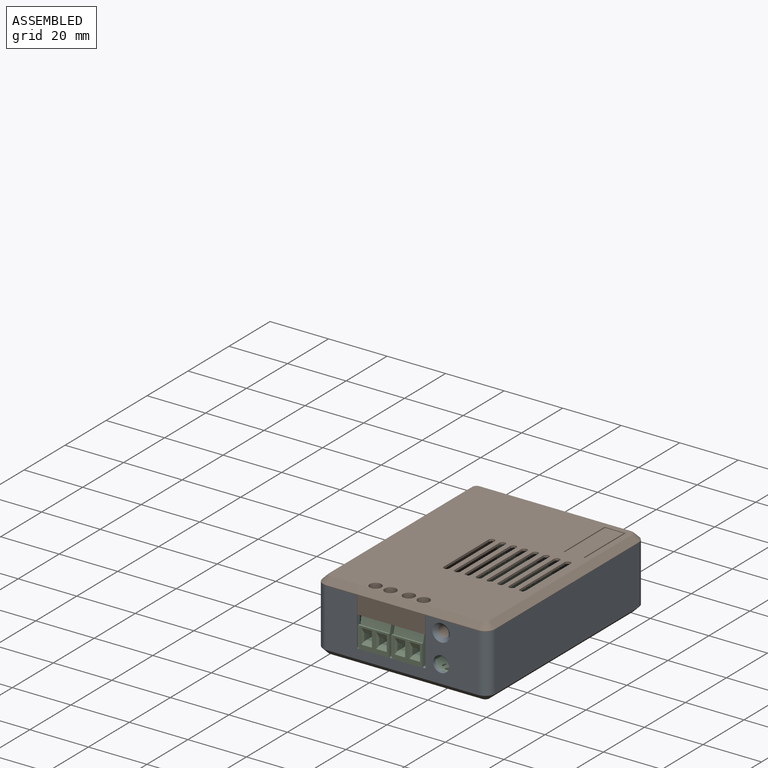
[diagram: assembled view]
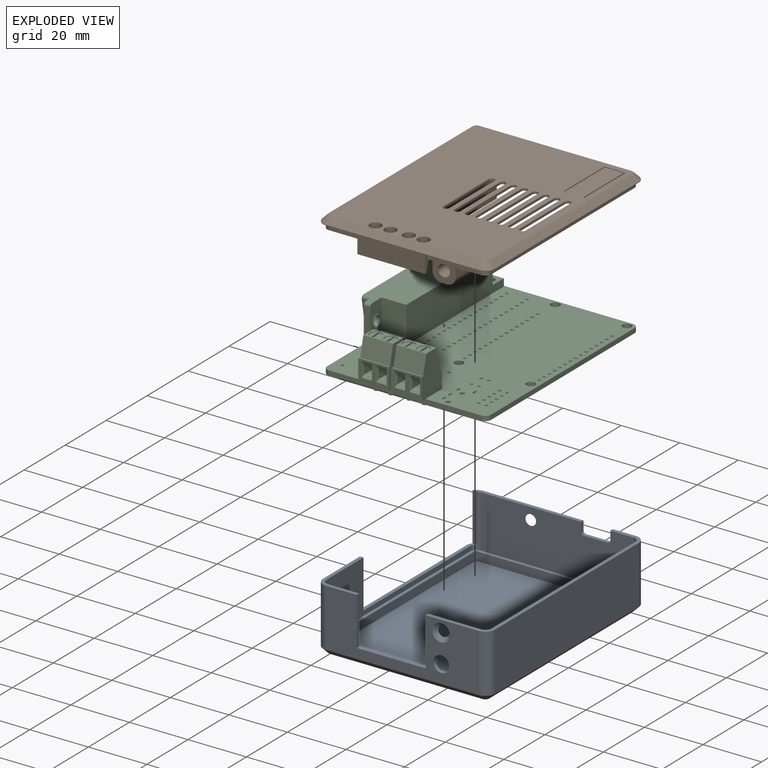
[diagram: exploded view]
GUIDED TOUR — FREECAD ASSEMBLY "CNC3040_Box"

This assembly has 3 components, labeled P0..P2 below (a component is one placed body or linked part; the same part can appear more than once), held together by 0 modeled joints plus 3 derived contact edges. A joint is a constraint between two components; its type names the relative motion it leaves free:
  CONTACT — a derived adjacency edge — the two components touch in the source model (clearance under 2% of the assembly's diagonal); it is measured from the geometry, not a modeled constraint.
Axis/direction vectors are unit vectors and 'through' points are millimeter coordinates, both in the assembly's world frame.

MATES
  1. CONTACT "contact_0_1": P0 <-> P1, contact direction (0.000, 0.000, 1.000) through (74.00, -18.60, 18.00) mm (derived from contact, not a modeled constraint)
  2. CONTACT "contact_0_2": P0 <-> P2, contact direction (-1.000, 0.000, 0.000) through (74.00, -19.90, 0.00) mm (derived from contact, not a modeled constraint)
  3. CONTACT "contact_1_2": P1 <-> P2, contact direction (-0.522, -0.135, -0.842) through (54.48, -91.40, 15.55) mm (derived from contact, not a modeled constraint)

ASSEMBLY ORDER
  1. P0 — the base component [order verified]
  2. P2 [order verified]
  3. P1 [order verified]
(P1 verified with a relaxed clearance tolerance: the source model stores slight part interference there.)
Order-tag legend:
  [order verified] — this step's position reverses a verified removal order: the component was checked to insert without passing through the ones already placed.

Of the 3 components, 2 carry a construction recipe — the FreeCAD feature program (sketches with constraints, then the solid features that consume them) that regenerates the part from scratch, quoted from this document or from the linked companion document it references; the rest are supplied as boundary geometry only. The tour below walks the components in assembly order: each is shown spotlighted twice — in the assembled view, then in the exploded view, where a leader line traces a displaced component back to its assembled socket (components that stay in place when exploded have no leader line; saturated green if recipe-attached, orange if geometry-only; every other component desaturated gray) — followed by its recipe or geometry summary and the mates that hold it.
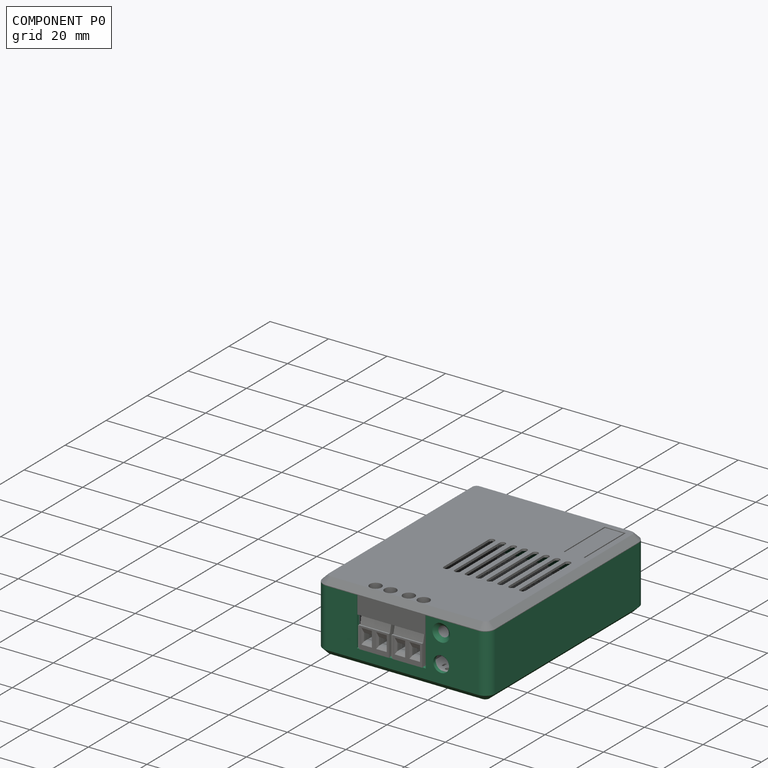
[diagram: component P0 — assembled]
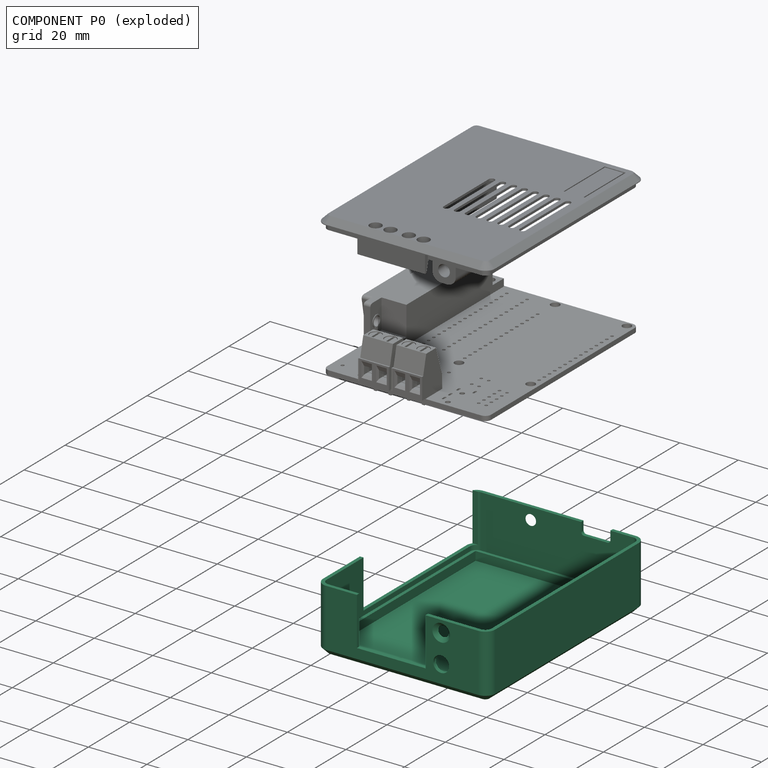
[diagram: component P0 — exploded]
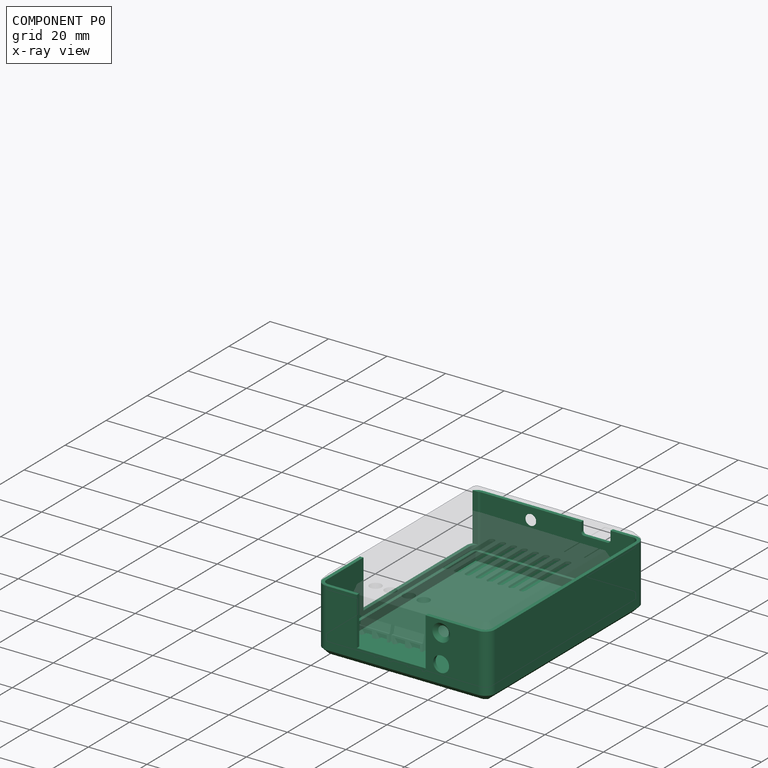
[diagram: component P0 — x-ray view]
COMPONENT P0 — recipe-attached ("Bot", modeled in this document).
Held by: resting contact with P1 (derived edge); resting contact with P2 (derived edge).
Construction recipe (the document's own serialized feature program — sketch geometry with constraints, then the solid features built on it; lengths are millimeters unless a unit is written):

FEATURE [Part::SubShapeBinder] Import  label="Import(GrblHAL_CNC3040 PCB)"
  BindCopyOnChange = 0
  BindMode = 0
  ClaimChildren = false
  Context = -> Body [Import.]
  EdgeTolerance = 1e-06
  FillStyle = 0
  FixShape = 1
  Fuse = false
  InvalidShape = false
  MakeFace = false
  MergeEdges = true
  OffsetFill = false
  OffsetIntersection = false
  OffsetJoinType = 0
  OffsetOpenResult = false
  Outline = false
  PartialLoad = false
  Relative = true
  SplitEdges = false
  Support = -> [Part007[Solid007.]]
  TightBound = false
  TreeRank = 135
  ValidateShape = false
  _Version = 8
FEATURE [PartDesign::Plane] DatumPlane
  AttachmentOffset = pos=(0,0,3) rot=(0,0,1;0rad)
  AttachmentSupport = -> [Import]
  FixShape = 1
  InvalidShape = false
  Length = 76
  MapMode = 5
  MinimumLength = 10
  MinimumWidth = 10
  Placement = pos=(0,0,-3) rot=(1,0,0;3.14159rad)
  ResizeMode = 0
  Support = -> [Import]
  TreeRank = 134
  ValidateShape = false
  Width = 94
FEATURE [Sketcher::SketchObject] Sketch
  ArcFitTolerance = 1e-06
  AttachmentSupport = -> [DatumPlane]
  ExternalBSplineMaxDegree = 5
  ExternalBSplineTolerance = 0.0001
  ExternalGeometry = -> [Import]
  FixShape = 1
  FullyConstrained = true
  InternalTolerance = 1e-06
  InvalidShape = false
  MakeInternals = false
  MapMode = 5
  Placement = pos=(0,0,-3) rot=(1,0,0;3.14159rad)
  Support = -> [DatumPlane]
  TreeRank = 136
  ValidateShape = false
  sketch-geometry (8):
    g0: ArcOfCircle CenterX=74 CenterY=92 CenterZ=0 NormalX=0 NormalY=0 NormalZ=1 AngleXU=0 Radius=3.4 StartAngle=1.1e-15 EndAngle=1.5708
    g1: ArcOfCircle CenterX=22 CenterY=92 CenterZ=0 NormalX=0 NormalY=0 NormalZ=1 AngleXU=0 Radius=3.4 StartAngle=1.5708 EndAngle=3.14159
    g2: ArcOfCircle CenterX=74 CenterY=22 CenterZ=0 NormalX=0 NormalY=0 NormalZ=1 AngleXU=0 Radius=3.4 StartAngle=4.71239 EndAngle=6.28319
    g3: ArcOfCircle CenterX=22 CenterY=22 CenterZ=0 NormalX=0 NormalY=0 NormalZ=1 AngleXU=0 Radius=3.4 StartAngle=3.14159 EndAngle=4.71239
    g4: LineSegment StartX=22 StartY=18.6 StartZ=0 EndX=74 EndY=18.6 EndZ=0
    g5: LineSegment StartX=77.4 StartY=22 StartZ=0 EndX=77.4 EndY=92 EndZ=0
    g6: LineSegment StartX=74 StartY=95.4 StartZ=0 EndX=22 EndY=95.4 EndZ=0
    g7: LineSegment StartX=18.6 StartY=92 StartZ=0 EndX=18.6 EndY=22 EndZ=0
  constraints (28):
    c: Horizontal(g0,g-4)
    c: Horizontal(g-4,g0)
    c: Vertical(g0,g-3)
    c: Vertical(g-3,g0)
    c: Vertical(g1,g-3)
    c: Vertical(g-3,g1)
    c: Horizontal(g1,g-5)
    c: Horizontal(g-5,g1)
    c: Horizontal(g2,g-4)
    c: Horizontal(g-4,g2)
    c: Vertical(g2,g2)
    c: Vertical(g2,g-6)
    c: Vertical(g3,g-6)
    c: Vertical(g-6,g3)
    c: Horizontal(g3,g-5)
    c: Horizontal(g-5,g3)
    c: Coincident(g4,g3)
    c: Coincident(g4,g2)
    c: Horizontal(g4)
    c: Coincident(g5,g2)
    c: Coincident(g5,g0)
    c: Vertical(g5)
    c: Coincident(g6,g0)
    c: Coincident(g6,g1)
    c: Horizontal(g6)
    c: Coincident(g7,g1)
    c: Coincident(g7,g3)
    c: DistanceX(g-4,g0) = 1.4
FEATURE [PartDesign::Pad] Pad
  AddSubType = 0
  AlongSketchNormal = false
  AutoTaperInnerAngle = true
  CheckUpToFaceLimits = true
  ClaimChildren = false
  Direction = (0,-1e-16,-1)
  Fit = 0
  FitJoin = 0
  FixShape = 1
  InnerFit = 0
  InnerFitJoin = 0
  InvalidShape = false
  Length = 0.8
  Length2 = 100
  Linearize = true
  NewSolid = false
  Profile = -> Sketch
  Refine = true
  Suppress = false
  TaperInnerAngle = 0
  TaperInnerAngleRev = 0
  TreeRank = 137
  Type = 0
  ValidateShape = false
  _ProfileBasedVersion = 1
FEATURE [Sketcher::SketchObject] Sketch001
  ArcFitTolerance = 1e-06
  AttachmentSupport = -> [Pad]
  ExternalBSplineMaxDegree = 5
  ExternalBSplineTolerance = 0.0001
  ExternalGeometry = -> [Pad]
  FixShape = 1
  FullyConstrained = true
  InternalTolerance = 1e-06
  InvalidShape = false
  MakeInternals = false
  MapMode = 5
  Placement = pos=(0,-4e-16,-3) rot=(0,0,1;0rad)
  Support = -> [Pad]
  TreeRank = 138
  ValidateShape = false
  sketch-geometry (6):
    g0: GeomPoint [constr] X=48 Y=-57 Z=0
    g1: LineSegment StartX=20.9 StartY=-20.9 StartZ=0 EndX=20.9 EndY=-93.1 EndZ=0
    g2: LineSegment StartX=20.9 StartY=-93.1 StartZ=0 EndX=75.1 EndY=-93.1 EndZ=0
    g3: LineSegment StartX=75.1 StartY=-93.1 StartZ=0 EndX=75.1 EndY=-20.9 EndZ=0
    g4: LineSegment StartX=75.1 StartY=-20.9 StartZ=0 EndX=20.9 EndY=-20.9 EndZ=0
    g5: GeomPoint [constr] X=48 Y=-57 Z=0
  constraints (13):
    c: Symmetric(g-8,g-4,g0)
    c: Coincident(g1,g2)
    c: Coincident(g2,g3)
    c: Coincident(g3,g4)
    c: Coincident(g4,g1)
    c: Horizontal(g2)
    c: Horizontal(g4)
    c: Vertical(g1)
    c: Vertical(g3)
    c: Symmetric(g2,g1,g5)
    c: Coincident(g5,g0)
    c: DistanceX(g2,g-10) = 2.3
    c: DistanceY(g-10,g2) = 2.3
FEATURE [PartDesign::Pad] Pad001
  AddSubType = 0
  AlongSketchNormal = false
  AutoTaperInnerAngle = true
  BaseFeature = -> Pad
  CheckUpToFaceLimits = true
  ClaimChildren = false
  Direction = (0,1e-16,1)
  Fit = 0
  FitJoin = 0
  FixShape = 1
  InnerFit = 0
  InnerFitJoin = 0
  InvalidShape = false
  Length = 3
  Length2 = 100
  Linearize = true
  NewSolid = false
  Profile = -> Sketch001
  Refine = true
  Suppress = false
  TaperInnerAngle = 0
  TaperInnerAngleRev = 0
  TreeRank = 139
  Type = 0
  ValidateShape = false
  _ProfileBasedVersion = 1
FEATURE [Sketcher::SketchObject] Sketch002
  ArcFitTolerance = 1e-06
  AttachmentSupport = -> [Pad001]
  ExternalBSplineMaxDegree = 5
  ExternalBSplineTolerance = 0.0001
  ExternalGeometry = -> [Pad001]
  FixShape = 1
  FullyConstrained = true
  InternalTolerance = 1e-06
  InvalidShape = false
  MakeInternals = false
  MapMode = 5
  Placement = pos=(0,0,2.1e-15) rot=(0,0,1;0rad)
  Support = -> [Pad001]
  TreeRank = 140
  ValidateShape = false
  sketch-geometry (8):
    g0: ArcOfCircle CenterX=74 CenterY=-22 CenterZ=0 NormalX=0 NormalY=0 NormalZ=1 AngleXU=0 Radius=2.2 StartAngle=0 EndAngle=1.5708
    g1: ArcOfCircle CenterX=74 CenterY=-92 CenterZ=0 NormalX=0 NormalY=0 NormalZ=1 AngleXU=0 Radius=2.2 StartAngle=4.71239 EndAngle=6.28319
    g2: ArcOfCircle CenterX=22 CenterY=-92 CenterZ=0 NormalX=0 NormalY=0 NormalZ=1 AngleXU=0 Radius=2.2 StartAngle=3.14159 EndAngle=4.71239
    g3: ArcOfCircle CenterX=22 CenterY=-22 CenterZ=0 NormalX=0 NormalY=0 NormalZ=1 AngleXU=0 Radius=2.2 StartAngle=1.5708 EndAngle=3.14159
    g4: LineSegment StartX=76.2 StartY=-92 StartZ=0 EndX=76.2 EndY=-22 EndZ=0
    g5: LineSegment StartX=74 StartY=-19.8 StartZ=0 EndX=22 EndY=-19.8 EndZ=0
    g6: LineSegment StartX=19.8 StartY=-22 StartZ=0 EndX=19.8 EndY=-92 EndZ=0
    g7: LineSegment StartX=22 StartY=-94.2 StartZ=0 EndX=74 EndY=-94.2 EndZ=0
  constraints (24):
    c: Coincident(g0,g-3)
    c: Coincident(g1,g-10)
    c: Coincident(g2,g-8)
    c: Coincident(g3,g-6)
    c: Vertical(g-6,g3)
    c: Vertical(g-5,g0)
    c: Vertical(g-10,g1)
    c: Vertical(g-9,g2)
    c: Horizontal(g2,g-8)
    c: Horizontal(g3,g-7)
    c: Horizontal(g-4,g0)
    c: Horizontal(g-10,g1)
    c: Coincident(g4,g1)
    c: Coincident(g4,g0)
    c: Vertical(g4)
    c: Coincident(g5,g0)
    c: Coincident(g5,g3)
    c: Horizontal(g5)
    c: Coincident(g6,g3)
    c: Coincident(g6,g2)
    c: Vertical(g6)
    c: Coincident(g7,g2)
    c: Coincident(g7,g1)
    c: DistanceX(g1,g-10) = 1.2
FEATURE [PartDesign::Pad] Pad002
  AddSubType = 0
  AlongSketchNormal = false
  AutoTaperInnerAngle = true
  BaseFeature = -> Pad001
  CheckUpToFaceLimits = true
  ClaimChildren = false
  Direction = (0,1e-16,1)
  Fit = 0
  FitJoin = 0
  FixShape = 1
  InnerFit = 0
  InnerFitJoin = 0
  InvalidShape = false
  Length = 18
  Length2 = 100
  Linearize = true
  NewSolid = false
  Profile = -> Sketch002
  Refine = true
  Suppress = false
  TaperInnerAngle = 0
  TaperInnerAngleRev = 0
  TreeRank = 141
  Type = 0
  ValidateShape = false
  _ProfileBasedVersion = 1
FEATURE [Sketcher::SketchObject] Sketch003
  ArcFitTolerance = 1e-06
  AttachmentSupport = -> [Pad002]
  ExternalBSplineMaxDegree = 5
  ExternalBSplineTolerance = 0.0001
  ExternalGeometry = -> [Import,Pad002]
  FixShape = 1
  FullyConstrained = false
  InternalTolerance = 1e-06
  InvalidShape = false
  MakeInternals = false
  MapMode = 5
  Placement = pos=(0,-95.4,0) rot=(1,0,0;1.5708rad)
  Support = -> [Pad002]
  TreeRank = 142
  ValidateShape = false
  sketch-geometry (7):
    g0: LineSegment StartX=32.5 StartY=21.6 StartZ=0 EndX=56 EndY=21.6 EndZ=0
    g1: LineSegment StartX=56 StartY=21.6 StartZ=0 EndX=56 EndY=1.6 EndZ=0
    g2: LineSegment StartX=56 StartY=1.6 StartZ=0 EndX=32.5 EndY=1.6 EndZ=0
    g3: LineSegment StartX=32.5 StartY=1.6 StartZ=0 EndX=32.5 EndY=21.6 EndZ=0
    g4: Circle CenterX=61.3116 CenterY=4.3 CenterZ=0 NormalX=0 NormalY=0 NormalZ=1 AngleXU=0 Radius=2.7
    g5: LineSegment [constr] StartX=61.3116 StartY=5.54672 StartZ=0 EndX=61.3116 EndY=-1.16389 EndZ=0
    g6: Circle CenterX=61.3116 CenterY=14 CenterZ=0 NormalX=0 NormalY=0 NormalZ=1 AngleXU=0 Radius=1.8
  constraints (19):
    c: Coincident(g0,g1)
    c: Coincident(g1,g2)
    c: Coincident(g2,g3)
    c: Coincident(g3,g0)
    c: Horizontal(g0)
    c: Horizontal(g2)
    c: Vertical(g1)
    c: Vertical(g3)
    c: DistanceY(g-1,g1) = 1.6
    c: DistanceX(g-2,g2) = 32.5
    c: Distance(g2) = 23.5
    c: Distance(g3) = 20
    c: Diameter(g4) = 5.4
    c: Symmetric(g-3,g-3,g5)
    c: PointOnObject(g4,g5)
    c: Tangent(g4,g2)
    c: PointOnObject(g6,g5)
    c: Diameter(g6) = 3.6
    c: Distance(g6,g-4) = 4
FEATURE [PartDesign::Pocket] Pocket
  AddSubType = 1
  AutoTaperInnerAngle = true
  BaseFeature = -> Pad002
  CheckUpToFaceLimits = true
  ClaimChildren = false
  Fit = 0
  FitJoin = 0
  FixShape = 1
  InnerFit = 0
  InnerFitJoin = 0
  InvalidShape = false
  Length = 5
  Length2 = 100
  Linearize = true
  NewSolid = false
  Profile = -> Sketch003
  Refine = true
  Suppress = false
  TaperInnerAngle = 0
  TaperInnerAngleRev = 0
  TreeRank = 143
  Type = 0
  ValidateShape = false
  _ProfileBasedVersion = 1
  _Version = 1
FEATURE [Part::SubShapeBinder] Import001  label="Import001(SOLID)"
  BindCopyOnChange = 0
  BindMode = 0
  ClaimChildren = false
  Context = -> Body [Import001.]
  EdgeTolerance = 1e-06
  FillStyle = 0
  FixShape = 1
  Fuse = false
  InvalidShape = false
  MakeFace = false
  MergeEdges = true
  OffsetFill = false
  OffsetIntersection = false
  OffsetJoinType = 0
  OffsetOpenResult = false
  Outline = false
  PartialLoad = false
  Relative = true
  SplitEdges = false
  Support = -> [Part007[Part003.Solid003.]]
  TightBound = false
  TreeRank = 145
  ValidateShape = false
  _Version = 8
FEATURE [Sketcher::SketchObject] Sketch004
  ArcFitTolerance = 1e-06
  AttachmentSupport = -> [Pocket]
  ExternalBSplineMaxDegree = 5
  ExternalBSplineTolerance = 0.0001
  ExternalGeometry = -> [Import001]
  FixShape = 1
  FullyConstrained = false
  InternalTolerance = 1e-06
  InvalidShape = false
  MakeInternals = false
  MapMode = 5
  Placement = pos=(18.6,-2.1e-15,0) rot=(-0.57735,0.57735,0.57735;4.18879rad)
  Support = -> [Pocket]
  TreeRank = 144
  ValidateShape = false
  sketch-geometry (5):
    g0: LineSegment StartX=20.005 StartY=21.6 StartZ=0 EndX=74.005 EndY=21.6 EndZ=0
    g1: LineSegment StartX=74.005 StartY=21.6 StartZ=0 EndX=74.005 EndY=1.6 EndZ=0
    g2: LineSegment StartX=74.005 StartY=1.6 StartZ=0 EndX=20.005 EndY=1.6 EndZ=0
    g3: LineSegment StartX=20.005 StartY=1.6 StartZ=0 EndX=20.005 EndY=21.6 EndZ=0
    g4: LineSegment [constr] StartX=47.005 StartY=18.7859 StartZ=0 EndX=47.005 EndY=-5.66756 EndZ=0
  constraints (13):
    c: Coincident(g0,g1)
    c: Coincident(g1,g2)
    c: Coincident(g2,g3)
    c: Coincident(g3,g0)
    c: Horizontal(g0)
    c: Horizontal(g2)
    c: Vertical(g1)
    c: Vertical(g3)
    c: DistanceY(g-1,g1) = 1.6
    c: Distance(g1) = 20
    c: Distance(g2) = 54
    c: PointOnObject(g-3,g4)
    c: Symmetric(g0,g0,g4)
FEATURE [PartDesign::Pocket] Pocket001
  AddSubType = 1
  AutoTaperInnerAngle = true
  BaseFeature = -> Pocket
  CheckUpToFaceLimits = true
  ClaimChildren = false
  Fit = 0
  FitJoin = 0
  FixShape = 1
  InnerFit = 0
  InnerFitJoin = 0
  InvalidShape = false
  Length = 5
  Length2 = 100
  Linearize = true
  NewSolid = false
  Profile = -> Sketch004
  Refine = true
  Suppress = false
  TaperInnerAngle = 0
  TaperInnerAngleRev = 0
  TreeRank = 146
  Type = 0
  ValidateShape = false
  _ProfileBasedVersion = 1
  _Version = 1
FEATURE [Sketcher::SketchObject] Sketch005
  ArcFitTolerance = 1e-06
  AttachmentSupport = -> [Pocket001]
  ExternalBSplineMaxDegree = 5
  ExternalBSplineTolerance = 0.0001
  ExternalGeometry = -> [Import,Pocket001]
  FixShape = 1
  FullyConstrained = false
  InternalTolerance = 1e-06
  InvalidShape = false
  MakeInternals = false
  MapMode = 5
  Placement = pos=(1e-16,-18.6,3e-15) rot=(0,0.707107,0.707107;3.14159rad)
  Support = -> [Pocket001]
  TreeRank = 147
  ValidateShape = false
  sketch-geometry (6):
    g0: LineSegment [constr] StartX=-61.2 StartY=23.4824 StartZ=0 EndX=-61.2 EndY=-12.3165 EndZ=0
    g1: LineSegment StartX=-66.2 StartY=18 StartZ=0 EndX=-56.2 EndY=18 EndZ=0
    g2: LineSegment StartX=-56.2 StartY=18 StartZ=0 EndX=-56.2 EndY=14 EndZ=0
    g3: LineSegment StartX=-56.2 StartY=14 StartZ=0 EndX=-66.2 EndY=14 EndZ=0
    g4: LineSegment StartX=-66.2 StartY=14 StartZ=0 EndX=-66.2 EndY=18 EndZ=0
    g5: Circle CenterX=-39 CenterY=14 CenterZ=0 NormalX=0 NormalY=0 NormalZ=1 AngleXU=0 Radius=1.8
  constraints (15):
    c: Symmetric(g-3,g-4,g0)
    c: Coincident(g1,g2)
    c: Coincident(g2,g3)
    c: Coincident(g3,g4)
    c: Coincident(g4,g1)
    c: Horizontal(g3)
    c: Vertical(g2)
    c: Vertical(g4)
    c: PointOnObject(g1,g-5)
    c: Symmetric(g1,g1,g0)
    c: Distance(g1) = 10
    c: Distance(g2) = 4
    c: Diameter(g5) = 3.6
    c: Distance(g5,g-5) = 4
    c: DistanceX(g5,g-5) = 17
FEATURE [PartDesign::Pocket] Pocket002
  AddSubType = 1
  AutoTaperInnerAngle = true
  BaseFeature = -> Pocket001
  CheckUpToFaceLimits = true
  ClaimChildren = false
  Fit = 0
  FitJoin = 0
  FixShape = 1
  InnerFit = 0
  InnerFitJoin = 0
  InvalidShape = false
  Length = 5
  Length2 = 100
  Linearize = true
  NewSolid = false
  Profile = -> Sketch005
  Refine = true
  Suppress = false
  TaperInnerAngle = 0
  TaperInnerAngleRev = 0
  TreeRank = 148
  Type = 0
  ValidateShape = false
  _ProfileBasedVersion = 1
  _Version = 1
FEATURE [PartDesign::Fillet] Fillet
  AddSubType = 0
  Base = -> Pocket002 [Edge86,Edge84]
  BaseFeature = -> Pocket002
  FixShape = 1
  InvalidShape = false
  NewSolid = false
  Radius = 1
  Refine = true
  SupportTransform = false
  Suppress = false
  TreeRank = 149
  ValidateShape = false
FEATURE [PartDesign::Chamfer] Chamfer
  AddSubType = 0
  Angle = 45
  Base = -> Fillet [Edge55]
  BaseFeature = -> Fillet
  ChamferType = 0
  FixShape = 1
  FlipDirection = false
  InvalidShape = false
  NewSolid = false
  Refine = true
  Size = 2
  Size2 = 1
  SupportTransform = false
  Suppress = false
  TreeRank = 150
  ValidateShape = false
FEATURE [PartDesign::Chamfer] Chamfer001
  AddSubType = 0
  Angle = 45
  Base = -> Chamfer [Edge67,Edge11]
  BaseFeature = -> Chamfer
  ChamferType = 0
  FixShape = 1
  FlipDirection = false
  InvalidShape = false
  NewSolid = false
  Refine = true
  Size = 1.19
  Size2 = 1
  SupportTransform = false
  Suppress = false
  TreeRank = 151
  ValidateShape = false
FEATURE [PartDesign::Body] Body  label="Bot"
  AutoGroupSolids = false
  ClaimAllChildren = false
  ExportMode = 0
  FixShape = 1
  Group = -> [DatumPlane,Import,Sketch,Pad,Sketch001,Pad001,Sketch002,Pad002,Sketch003,Pocket,Sketch004,Import001,Pocket001,Sketch005,Pocket002,Fillet,Chamfer,Chamfer001]
  InvalidShape = false
  Origin = -> Origin008
  Tip = -> Chamfer001
  TreeRank = 115
  ValidateShape = false
  _ExportChildren = -> [DatumPlane,Import,Pad,Pad001,Pad002,Pocket,Import001,Pocket001,Pocket002,Fillet,Chamfer,Chamfer001]
  _GroupVersion = 1
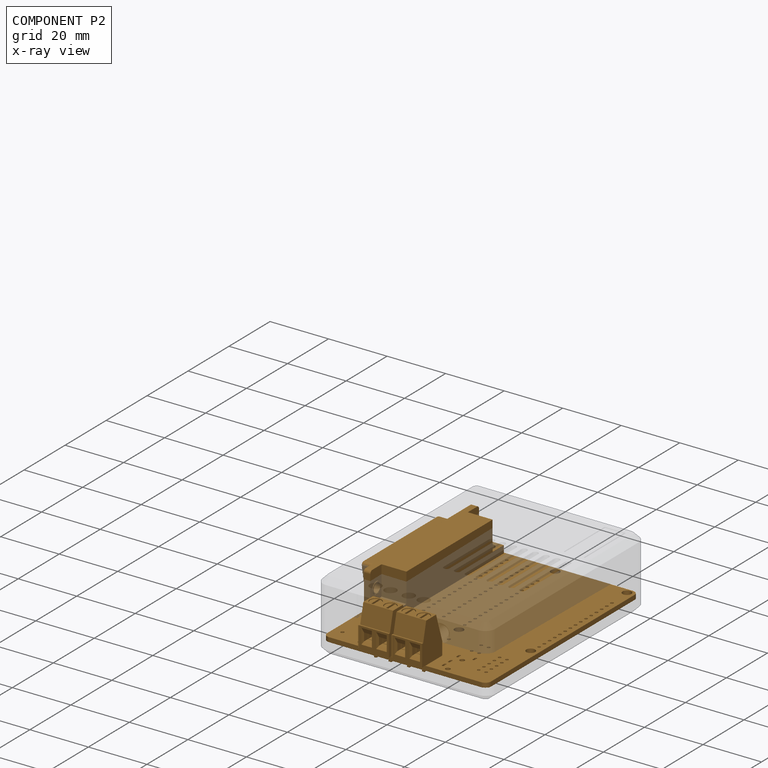
[diagram: component P2 — x-ray view]
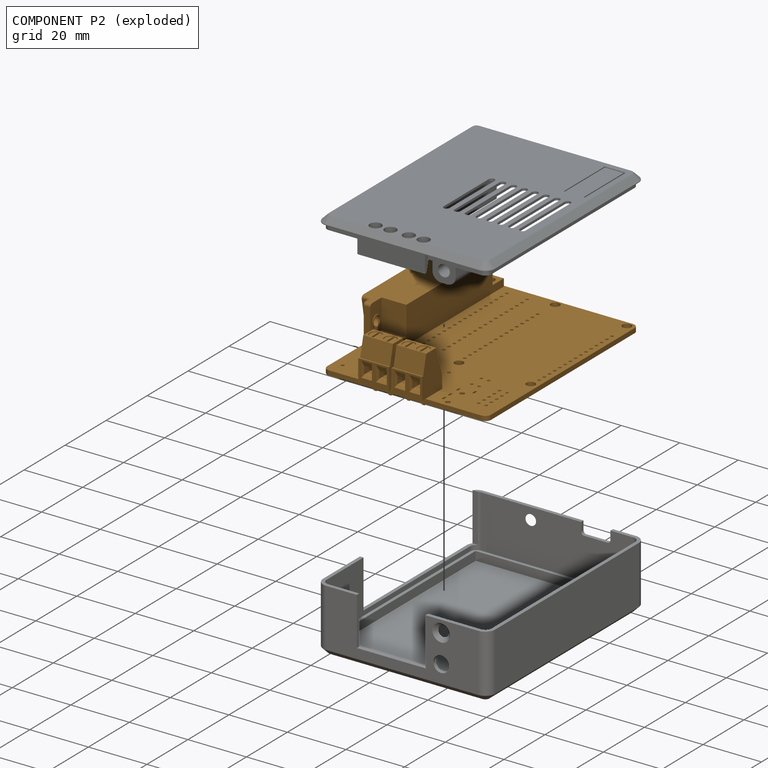
[diagram: component P2 — exploded]
COMPONENT P2 — geometry summary ("GrblHAL_CNC3040 1"; no construction recipe available for this part):
  bounding box: 75.7 x 62.6 x 19.2 mm
  tessellated surface: 120,556 triangles
  volume: 16266 mm^3 (18% of its bounding box)
Held by: resting contact with P0 (derived edge); resting contact with P1 (derived edge).
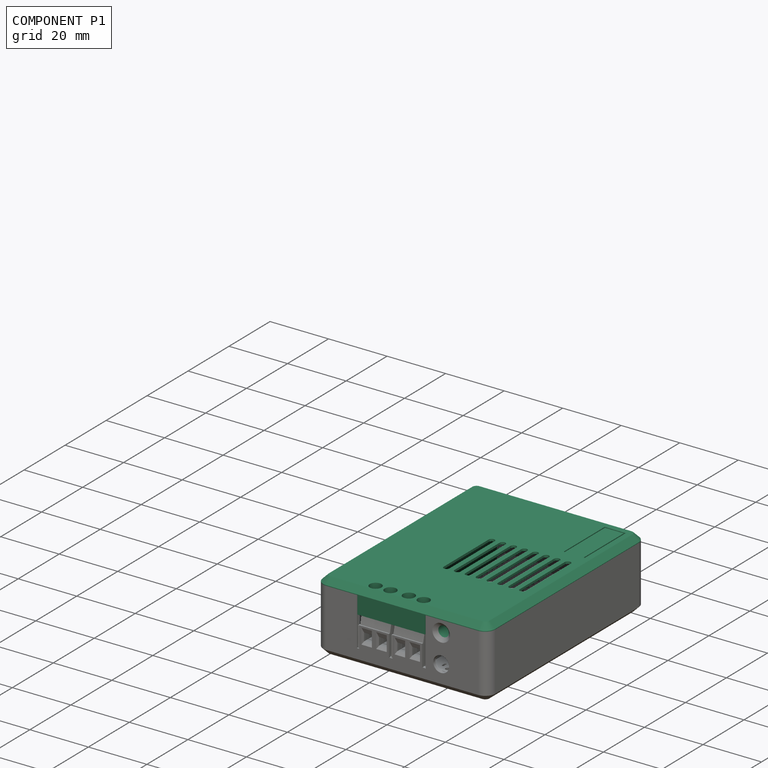
[diagram: component P1 — assembled]
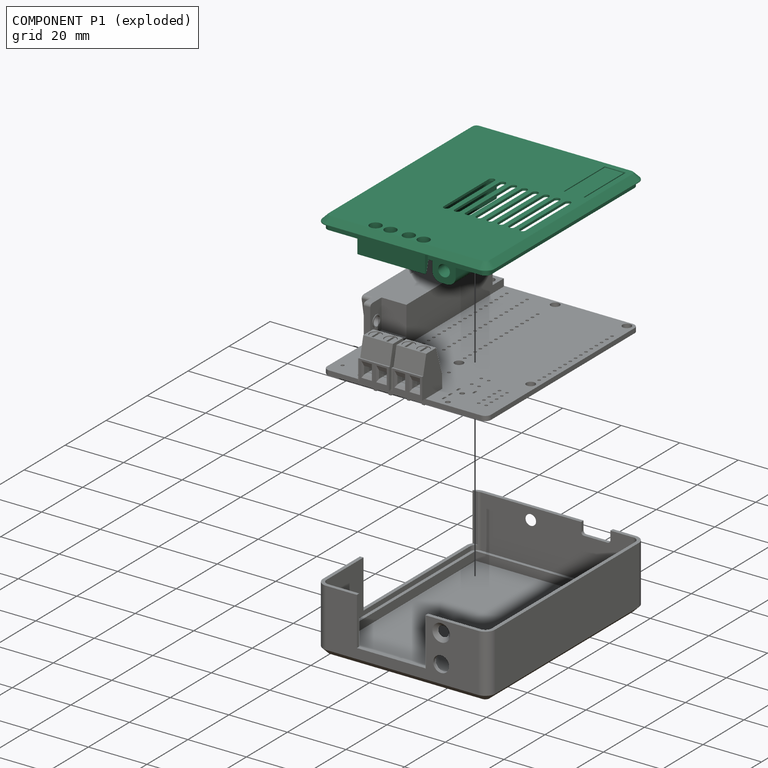
[diagram: component P1 — exploded]
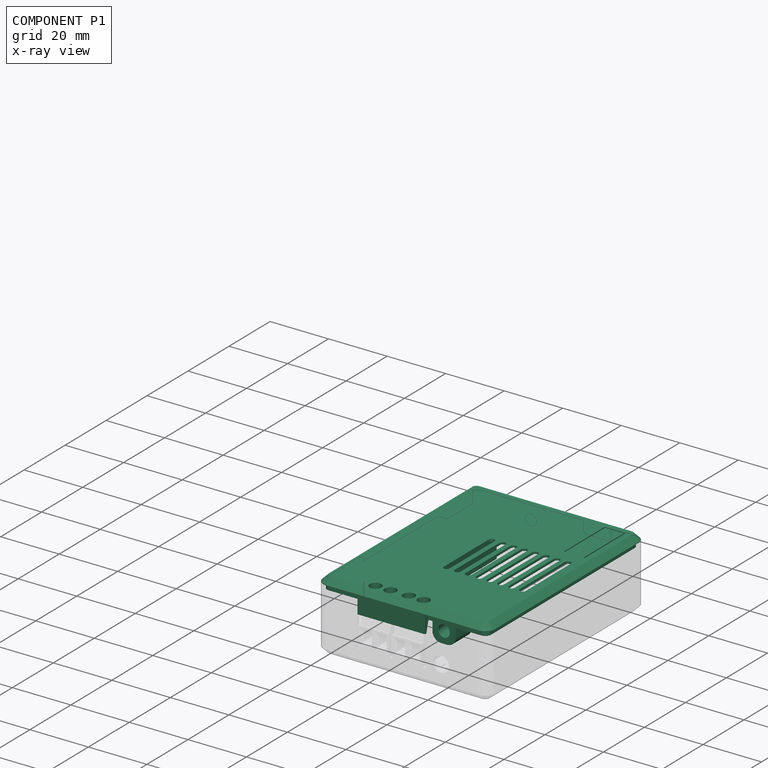
[diagram: component P1 — x-ray view]
COMPONENT P1 — recipe-attached ("Top", modeled in this document).
Held by: resting contact with P0 (derived edge); resting contact with P2 (derived edge).
Construction recipe (the document's own serialized feature program — sketch geometry with constraints, then the solid features built on it; lengths are millimeters unless a unit is written):

FEATURE [Part::SubShapeBinder] Import002  label="Import002(Chamfer001)"
  BindCopyOnChange = 0
  BindMode = 0
  ClaimChildren = false
  Context = -> Body001 [Import002.]
  EdgeTolerance = 1e-06
  FillStyle = 0
  FixShape = 1
  Fuse = false
  InvalidShape = false
  MakeFace = false
  MergeEdges = true
  OffsetFill = false
  OffsetIntersection = false
  OffsetJoinType = 0
  OffsetOpenResult = false
  Outline = false
  PartialLoad = false
  Relative = true
  SplitEdges = false
  Support = -> [Body[Chamfer001.]]
  TightBound = false
  TreeRank = 162
  ValidateShape = false
  _Version = 8
FEATURE [Sketcher::SketchObject] Sketch006
  ArcFitTolerance = 1e-06
  AttachmentSupport = -> [Import002]
  ExternalBSplineMaxDegree = 5
  ExternalBSplineTolerance = 0.0001
  ExternalGeometry = -> [Import002]
  FixShape = 1
  FullyConstrained = true
  InternalTolerance = 1e-06
  InvalidShape = false
  MakeInternals = false
  MapMode = 5
  Placement = pos=(0,2.1e-15,18) rot=(0,0,1;0rad)
  Support = -> [Import002]
  TreeRank = 163
  ValidateShape = false
  sketch-geometry (3):
    g0: LineSegment StartX=74 StartY=-18.6 StartZ=0 EndX=22 EndY=-18.6 EndZ=0
    g1: LineSegment StartX=74 StartY=-95.4 StartZ=0 EndX=22 EndY=-95.4 EndZ=0
    g2: LineSegment StartX=18.6 StartY=-92 StartZ=0 EndX=18.6 EndY=-22 EndZ=0
  constraints (6):
    c: Coincident(g0,g-3)
    c: Coincident(g0,g-7)
    c: Coincident(g1,g-5)
    c: Coincident(g1,g-6)
    c: Coincident(g2,g-6)
    c: Coincident(g2,g-8)
FEATURE [PartDesign::Pad] Pad003
  AddSubType = 0
  AlongSketchNormal = false
  AutoTaperInnerAngle = true
  CheckUpToFaceLimits = true
  ClaimChildren = false
  Direction = (0,1e-16,1)
  Fit = 0
  FitJoin = 0
  FixShape = 1
  InnerFit = 0
  InnerFitJoin = 0
  InvalidShape = false
  Length = 2.2
  Length2 = 100
  Linearize = true
  NewSolid = false
  Profile = -> Sketch006
  Refine = true
  Suppress = false
  TaperInnerAngle = 0
  TaperInnerAngleRev = 0
  TreeRank = 164
  Type = 0
  ValidateShape = false
  _ProfileBasedVersion = 1
FEATURE [Sketcher::SketchObject] Sketch007
  ArcFitTolerance = 1e-06
  AttachmentSupport = -> [Pad003]
  ExternalBSplineMaxDegree = 5
  ExternalBSplineTolerance = 0.0001
  ExternalGeometry = -> [Import002]
  FixShape = 1
  FullyConstrained = true
  InternalTolerance = 1e-06
  InvalidShape = false
  MakeInternals = false
  MapMode = 5
  Placement = pos=(0,1.7e-15,18) rot=(1,0,0;3.14159rad)
  Support = -> [Pad003]
  TreeRank = 165
  ValidateShape = false
  sketch-geometry (4):
    g0: LineSegment StartX=32.7 StartY=95.4 StartZ=0 EndX=55.8 EndY=95.4 EndZ=0
    g1: LineSegment StartX=55.8 StartY=95.4 StartZ=0 EndX=55.8 EndY=87.4 EndZ=0
    g2: LineSegment StartX=55.8 StartY=87.4 StartZ=0 EndX=32.7 EndY=87.4 EndZ=0
    g3: LineSegment StartX=32.7 StartY=87.4 StartZ=0 EndX=32.7 EndY=95.4 EndZ=0
  constraints (12):
    c: Coincident(g0,g1)
    c: Coincident(g1,g2)
    c: Coincident(g2,g3)
    c: Coincident(g3,g0)
    c: Horizontal(g0)
    c: Horizontal(g2)
    c: Vertical(g1)
    c: Vertical(g3)
    c: Horizontal(g-3,g0)
    c: DistanceX(g0,g-4) = 0.2
    c: DistanceX(g-3,g0) = 0.2
    c: Distance(g3) = 8
FEATURE [PartDesign::Pad] Pad004
  AddSubType = 0
  AlongSketchNormal = false
  AutoTaperInnerAngle = true
  BaseFeature = -> Pad003
  CheckUpToFaceLimits = true
  ClaimChildren = false
  Direction = (0,-1e-16,-1)
  Fit = 0
  FitJoin = 0
  FixShape = 1
  InnerFit = 0
  InnerFitJoin = 0
  InvalidShape = false
  Length = 6
  Length2 = 100
  Linearize = true
  NewSolid = false
  Profile = -> Sketch007
  Refine = true
  Suppress = false
  TaperInnerAngle = 0
  TaperInnerAngleRev = 0
  TreeRank = 166
  Type = 0
  ValidateShape = false
  _ProfileBasedVersion = 1
FEATURE [Sketcher::SketchObject] Sketch008
  ArcFitTolerance = 1e-06
  AttachmentSupport = -> [Pad004]
  ExternalBSplineMaxDegree = 5
  ExternalBSplineTolerance = 0.0001
  ExternalGeometry = -> [Pad004]
  FixShape = 1
  FullyConstrained = false
  InternalTolerance = 1e-06
  InvalidShape = false
  MakeInternals = false
  MapMode = 5
  Placement = pos=(55.8,0,0) rot=(0.57735,0.57735,0.57735;2.0944rad)
  Support = -> [Pad004]
  TreeRank = 167
  ValidateShape = false
  sketch-geometry (4):
    g0: LineSegment StartX=-94.7258 StartY=12 StartZ=0 EndX=-93.779 EndY=15.6597 EndZ=0
    g1: LineSegment StartX=-93.779 StartY=15.6597 StartZ=0 EndX=-87.4 EndY=15.6597 EndZ=0
    g2: LineSegment StartX=-87.4 StartY=15.6597 StartZ=0 EndX=-87.4 EndY=12 EndZ=0
    g3: LineSegment StartX=-87.4 StartY=12 StartZ=0 EndX=-94.7258 EndY=12 EndZ=0
  constraints (8):
    c: PointOnObject(g0,g-3)
    c: Coincident(g0,g1)
    c: PointOnObject(g1,g-4)
    c: Horizontal(g1)
    c: Coincident(g1,g2)
    c: Coincident(g2,g-4)
    c: Coincident(g2,g3)
    c: Coincident(g3,g0)
FEATURE [PartDesign::Pocket] Pocket003
  AddSubType = 1
  AutoTaperInnerAngle = true
  BaseFeature = -> Pad004
  CheckUpToFaceLimits = true
  ClaimChildren = false
  Fit = 0
  FitJoin = 0
  FixShape = 1
  InnerFit = 0
  InnerFitJoin = 0
  InvalidShape = false
  Length = 5
  Length2 = 100
  Linearize = true
  NewSolid = false
  Profile = -> Sketch008
  Refine = true
  Suppress = false
  TaperInnerAngle = 0
  TaperInnerAngleRev = 0
  TreeRank = 168
  Type = 1
  ValidateShape = false
  _ProfileBasedVersion = 1
  _Version = 1
FEATURE [Sketcher::SketchObject] Sketch009
  ArcFitTolerance = 1e-06
  AttachmentSupport = -> [Pocket003]
  ExternalBSplineMaxDegree = 5
  ExternalBSplineTolerance = 0.0001
  ExternalGeometry = -> [Import002,Pocket003]
  FixShape = 1
  FullyConstrained = true
  InternalTolerance = 1e-06
  InvalidShape = false
  MakeInternals = false
  MapMode = 5
  Placement = pos=(0,1.7e-15,18) rot=(1,0,0;3.14159rad)
  Support = -> [Pocket003]
  TreeRank = 169
  ValidateShape = false
  sketch-geometry (5):
    g0: LineSegment StartX=18.6 StartY=22 StartZ=0 EndX=18.6 EndY=73.805 EndZ=0
    g1: LineSegment StartX=18.6 StartY=73.805 StartZ=0 EndX=36.6 EndY=73.805 EndZ=0
    g2: LineSegment StartX=36.6 StartY=73.805 StartZ=0 EndX=36.6 EndY=20.205 EndZ=0
    g3: LineSegment StartX=19.1124 StartY=20.205 StartZ=0 EndX=36.6 EndY=20.205 EndZ=0
    g4: ArcOfCircle CenterX=22 CenterY=22 CenterZ=0 NormalX=0 NormalY=0 NormalZ=1 AngleXU=0 Radius=3.4 StartAngle=3.14159 EndAngle=3.69777
  constraints (14):
    c: Vertical(g0)
    c: Coincident(g0,g1)
    c: Coincident(g1,g2)
    c: Vertical(g2)
    c: Horizontal(g3)
    c: Coincident(g4,g-5)
    c: Coincident(g4,g-5)
    c: Coincident(g4,g3)
    c: Coincident(g0,g4)
    c: Coincident(g2,g3)
    c: Horizontal(g1)
    c: DistanceY(g0,g-3) = 0.2
    c: DistanceY(g-5,g3) = 0.2
    c: Distance(g1) = 18
FEATURE [PartDesign::Pad] Pad005
  AddSubType = 0
  AlongSketchNormal = false
  AutoTaperInnerAngle = true
  BaseFeature = -> Pocket003
  CheckUpToFaceLimits = true
  ClaimChildren = false
  Direction = (0,-1e-16,-1)
  Fit = 0
  FitJoin = 0
  FixShape = 1
  InnerFit = 0
  InnerFitJoin = 0
  InvalidShape = false
  Length = 3.6
  Length2 = 100
  Linearize = true
  NewSolid = false
  Profile = -> Sketch009
  Refine = true
  Suppress = false
  TaperInnerAngle = 0
  TaperInnerAngleRev = 0
  TreeRank = 170
  Type = 0
  ValidateShape = false
  _ProfileBasedVersion = 1
FEATURE [Sketcher::SketchObject] Sketch010
  ArcFitTolerance = 1e-06
  AttachmentSupport = -> [Pad005]
  ExternalBSplineMaxDegree = 5
  ExternalBSplineTolerance = 0.0001
  ExternalGeometry = -> [Import002,Pad005]
  FixShape = 1
  FullyConstrained = false
  InternalTolerance = 1e-06
  InvalidShape = false
  MakeInternals = false
  MapMode = 5
  Placement = pos=(0,1.7e-15,18) rot=(1,0,0;3.14159rad)
  Support = -> [Pad005]
  TreeRank = 173
  ValidateShape = false
  sketch-geometry (12):
    g0: LineSegment StartX=42.9877 StartY=19.99 StartZ=0 EndX=29.8 EndY=19.99 EndZ=0
    g1: LineSegment StartX=29.8 StartY=19.99 StartZ=0 EndX=29.8 EndY=64.99 EndZ=0
    g2: LineSegment StartX=29.8 StartY=64.99 StartZ=0 EndX=36.6 EndY=64.99 EndZ=0
    g3: LineSegment StartX=36.6 StartY=64.99 StartZ=0 EndX=36.6 EndY=27.99 EndZ=0
    g4: LineSegment StartX=36.6 StartY=27.99 StartZ=0 EndX=42.9877 EndY=27.99 EndZ=0
    g5: LineSegment StartX=42.9877 StartY=27.99 StartZ=0 EndX=42.9877 EndY=19.99 EndZ=0
    g6: LineSegment StartX=65.3239 StartY=86.01 StartZ=0 EndX=57.3239 EndY=86.01 EndZ=0
    g7: LineSegment StartX=57.3239 StartY=86.01 StartZ=0 EndX=57.3239 EndY=94.01 EndZ=0
    g8: LineSegment StartX=57.3239 StartY=94.01 StartZ=0 EndX=65.3239 EndY=94.01 EndZ=0
    g9: LineSegment StartX=65.3239 StartY=94.01 StartZ=0 EndX=65.3239 EndY=86.01 EndZ=0
    g10: LineSegment [constr] StartX=61.3239 StartY=83.6972 StartZ=0 EndX=61.3239 EndY=98.6165 EndZ=0
    g11: LineSegment [constr] StartX=38.9877 StartY=14.5563 StartZ=0 EndX=38.9877 EndY=33.0158 EndZ=0
  constraints (31):
    c: Horizontal(g0)
    c: Coincident(g0,g1)
    c: Vertical(g1)
    c: Coincident(g1,g2)
    c: Coincident(g2,g3)
    c: Vertical(g3)
    c: Coincident(g3,g4)
    c: Horizontal(g4)
    c: Coincident(g4,g5)
    c: Coincident(g5,g0)
    c: Vertical(g5)
    c: Coincident(g6,g7)
    c: Coincident(g7,g8)
    c: Coincident(g8,g9)
    c: Coincident(g9,g6)
    c: Horizontal(g8)
    c: Vertical(g7)
    c: Vertical(g9)
    c: Symmetric(g-4,g-4,g10)
    c: Symmetric(g6,g6,g10)
    c: Distance(g6) = 8
    c: Distance(g9) = 8
    c: DistanceY(g7,g-4) = 0.2
    c: Symmetric(g-3,g-3,g11)
    c: DistanceX(g11,g0) = 4
    c: Distance(g5) = 8
    c: DistanceY(g-3,g0) = 0.2
    c: PointOnObject(g3,g-5)
    c: DistanceX(g-6,g0) = 11.2
    c: Horizontal(g2)
    c: Distance(g1) = 45
FEATURE [PartDesign::Pad] Pad006
  AddSubType = 0
  AlongSketchNormal = false
  AutoTaperInnerAngle = true
  BaseFeature = -> Pad005
  CheckUpToFaceLimits = true
  ClaimChildren = false
  Direction = (0,-1e-16,-1)
  Fit = 0
  FitJoin = 0
  FixShape = 1
  InnerFit = 0
  InnerFitJoin = 0
  InvalidShape = false
  Length = 8
  Length2 = 100
  Linearize = true
  NewSolid = false
  Profile = -> Sketch010
  Refine = true
  Suppress = false
  TaperInnerAngle = 0
  TaperInnerAngleRev = 0
  TreeRank = 174
  Type = 0
  ValidateShape = false
  _ProfileBasedVersion = 1
FEATURE [Sketcher::SketchObject] Sketch011
  ArcFitTolerance = 1e-06
  AttachmentSupport = -> [Pad006]
  ExternalBSplineMaxDegree = 5
  ExternalBSplineTolerance = 0.0001
  ExternalGeometry = -> [Pad006]
  FixShape = 1
  FullyConstrained = true
  InternalTolerance = 1e-06
  InvalidShape = false
  MakeInternals = false
  MapMode = 5
  Placement = pos=(2e-16,9e-16,10) rot=(1,0,0;3.14159rad)
  Support = -> [Pad006]
  TreeRank = 175
  ValidateShape = false
  sketch-geometry (4):
    g0: LineSegment StartX=29.8 StartY=64.99 StartZ=0 EndX=31 EndY=64.99 EndZ=0
    g1: LineSegment StartX=31 StartY=64.99 StartZ=0 EndX=31 EndY=24.99 EndZ=0
    g2: LineSegment StartX=31 StartY=24.99 StartZ=0 EndX=29.8 EndY=24.99 EndZ=0
    g3: LineSegment StartX=29.8 StartY=24.99 StartZ=0 EndX=29.8 EndY=64.99 EndZ=0
  constraints (11):
    c: Coincident(g0,g1)
    c: Coincident(g1,g2)
    c: Coincident(g2,g3)
    c: Coincident(g3,g0)
    c: Horizontal(g0)
    c: Horizontal(g2)
    c: Vertical(g1)
    c: Vertical(g3)
    c: Coincident(g0,g-3)
    c: Distance(g0) = 1.2
    c: Distance(g3) = 40
FEATURE [PartDesign::Pad] Pad007
  AddSubType = 0
  AlongSketchNormal = false
  AutoTaperInnerAngle = true
  BaseFeature = -> Pad006
  CheckUpToFaceLimits = true
  ClaimChildren = false
  Direction = (0,-1e-16,-1)
  Fit = 0
  FitJoin = 0
  FixShape = 1
  InnerFit = 0
  InnerFitJoin = 0
  InvalidShape = false
  Length = 8.2
  Length2 = 100
  Linearize = true
  NewSolid = false
  Profile = -> Sketch011
  Refine = true
  Suppress = false
  TaperInnerAngle = 0
  TaperInnerAngleRev = 0
  TreeRank = 176
  Type = 0
  ValidateShape = false
  _ProfileBasedVersion = 1
FEATURE [Sketcher::SketchObject] Sketch012
  ArcFitTolerance = 1e-06
  AttachmentSupport = -> [Pad007]
  ExternalBSplineMaxDegree = 5
  ExternalBSplineTolerance = 0.0001
  ExternalGeometry = -> [Import002,Pad007]
  FixShape = 1
  FullyConstrained = true
  InternalTolerance = 1e-06
  InvalidShape = false
  MakeInternals = false
  MapMode = 5
  Placement = pos=(0,1.7e-15,18) rot=(1,0,0;3.14159rad)
  Support = -> [Pad007]
  TreeRank = 177
  ValidateShape = false
  sketch-geometry (17):
    g0: ArcOfCircle CenterX=74 CenterY=22 CenterZ=0 NormalX=0 NormalY=0 NormalZ=1 AngleXU=0 Radius=2.01 StartAngle=4.71239 EndAngle=6.28319
    g1: ArcOfCircle CenterX=74 CenterY=92 CenterZ=0 NormalX=0 NormalY=0 NormalZ=1 AngleXU=0 Radius=2.01 StartAngle=-9e-16 EndAngle=1.5708
    g2: ArcOfCircle CenterX=22 CenterY=92 CenterZ=0 NormalX=0 NormalY=0 NormalZ=1 AngleXU=0 Radius=2.01 StartAngle=1.5708 EndAngle=3.14159
    g3: LineSegment StartX=66.2 StartY=19.99 StartZ=0 EndX=74 EndY=19.99 EndZ=0
    g4: LineSegment StartX=42.9877 StartY=19.99 StartZ=0 EndX=56.2 EndY=19.99 EndZ=0
    g5: LineSegment StartX=76.01 StartY=22 StartZ=0 EndX=76.01 EndY=92 EndZ=0
    g6: LineSegment StartX=74 StartY=94.01 StartZ=0 EndX=22 EndY=94.01 EndZ=0
    g7: LineSegment StartX=19.99 StartY=92 StartZ=0 EndX=19.99 EndY=73.805 EndZ=0
    g8: LineSegment StartX=21.59 StartY=73.805 StartZ=0 EndX=21.59 EndY=92.81 EndZ=0
    g9: LineSegment StartX=21.59 StartY=92.81 StartZ=0 EndX=74.41 EndY=92.81 EndZ=0
    g10: LineSegment StartX=74.41 StartY=92.81 StartZ=0 EndX=74.41 EndY=21.59 EndZ=0
    g11: LineSegment StartX=74.41 StartY=21.59 StartZ=0 EndX=66.2 EndY=21.59 EndZ=0
    g12: LineSegment StartX=66.2 StartY=21.59 StartZ=0 EndX=66.2 EndY=19.99 EndZ=0
    g13: LineSegment StartX=56.2 StartY=19.99 StartZ=0 EndX=56.2 EndY=21.59 EndZ=0
    g14: LineSegment StartX=56.2 StartY=21.59 StartZ=0 EndX=42.9877 EndY=21.59 EndZ=0
    g15: LineSegment StartX=42.9877 StartY=21.59 StartZ=0 EndX=42.9877 EndY=19.99 EndZ=0
    g16: LineSegment StartX=19.99 StartY=73.805 StartZ=0 EndX=21.59 EndY=73.805 EndZ=0
  constraints (50):
    c: Coincident(g0,g-5)
    c: Coincident(g1,g-6)
    c: Coincident(g2,g-7)
    c: Horizontal(g-7,g2)
    c: Horizontal(g1,g-6)
    c: Horizontal(g0,g-5)
    c: Vertical(g-5,g0)
    c: Vertical(g1,g-6)
    c: Vertical(g2,g-7)
    c: Coincident(g3,g0)
    c: Horizontal(g3)
    c: Vertical(g3,g-4)
    c: Coincident(g4,g-8)
    c: Horizontal(g4)
    c: Vertical(g-3,g4)
    c: Horizontal(g4,g3)
    c: Coincident(g5,g0)
    c: Coincident(g5,g1)
    c: Vertical(g5)
    c: Coincident(g6,g1)
    c: Coincident(g6,g2)
    c: Horizontal(g6)
    c: Coincident(g7,g2)
    c: PointOnObject(g7,g-9)
    c: Vertical(g7)
    c: PointOnObject(g8,g-9)
    c: Vertical(g8)
    c: Coincident(g8,g9)
    c: Horizontal(g9)
    c: Coincident(g9,g10)
    c: Vertical(g10)
    c: Coincident(g10,g11)
    c: Horizontal(g11)
    c: Coincident(g11,g12)
    c: Coincident(g12,g3)
    c: Vertical(g12)
    c: Coincident(g4,g13)
    c: Vertical(g13)
    c: Coincident(g13,g14)
    c: PointOnObject(g14,g-8)
    c: Horizontal(g14)
    c: Coincident(g14,g15)
    c: Coincident(g15,g4)
    c: Coincident(g7,g16)
    c: Coincident(g16,g8)
    c: Equal(g16,g13)
    c: Equal(g13,g12)
    c: Distance(g12) = 1.6
    c: DistanceX(g10,g0) = 1.6
    c: DistanceY(g9,g1) = 1.2
FEATURE [PartDesign::Pad] Pad008
  AddSubType = 0
  AlongSketchNormal = false
  AutoTaperInnerAngle = true
  BaseFeature = -> Pad007
  CheckUpToFaceLimits = true
  ClaimChildren = false
  Direction = (0,-1e-16,-1)
  Fit = 0
  FitJoin = 0
  FixShape = 1
  InnerFit = 0
  InnerFitJoin = 0
  InvalidShape = false
  Length = 2
  Length2 = 100
  Linearize = true
  NewSolid = false
  Profile = -> Sketch012
  Refine = true
  Suppress = false
  TaperInnerAngle = 0
  TaperInnerAngleRev = 0
  TreeRank = 178
  Type = 0
  ValidateShape = false
  _ProfileBasedVersion = 1
FEATURE [Sketcher::SketchObject] Sketch013
  ArcFitTolerance = 1e-06
  AttachmentSupport = -> [Pad008]
  ExternalBSplineMaxDegree = 5
  ExternalBSplineTolerance = 0.0001
  ExternalGeometry = -> [Pad008]
  FixShape = 1
  FullyConstrained = true
  InternalTolerance = 1e-06
  InvalidShape = false
  MakeInternals = false
  MapMode = 5
  Placement = pos=(0,1.7e-15,18) rot=(1,0,0;3.14159rad)
  Support = -> [Pad008]
  TreeRank = 179
  ValidateShape = false
  sketch-geometry (2):
    g0: LineSegment StartX=55.8 StartY=87.4 StartZ=0 EndX=57.3239 EndY=86.01 EndZ=0
    g1: LineSegment StartX=56.2 StartY=21.59 StartZ=0 EndX=66.2 EndY=21.59 EndZ=0
  constraints (4):
    c: Coincident(g0,g-7)
    c: Coincident(g0,g-6)
    c: Coincident(g1,g-15)
    c: Coincident(g1,g-16)
FEATURE [PartDesign::Pocket] Pocket004
  AddSubType = 1
  AutoTaperInnerAngle = true
  BaseFeature = -> Pad008
  CheckUpToFaceLimits = true
  ClaimChildren = false
  Fit = 0
  FitJoin = 0
  FixShape = 1
  InnerFit = 0
  InnerFitJoin = 0
  InvalidShape = false
  Length = 1.4
  Length2 = 100
  Linearize = true
  NewSolid = false
  Profile = -> Sketch013
  Refine = true
  Suppress = false
  TaperInnerAngle = 0
  TaperInnerAngleRev = 0
  TreeRank = 180
  Type = 0
  ValidateShape = false
  _ProfileBasedVersion = 1
  _Version = 1
FEATURE [PartDesign::Chamfer] Chamfer002
  AddSubType = 0
  Angle = 45
  Base = -> Pocket004 [Edge145,Edge146,Edge147,Edge148,Edge149,Edge150,Edge151,Edge152,Edge153,Edge141,Edge140,Edge142,Edge143,Edge144]
  BaseFeature = -> Pocket004
  ChamferType = 0
  FixShape = 1
  FlipDirection = false
  InvalidShape = false
  NewSolid = false
  Refine = true
  Size = 1
  Size2 = 1
  SupportTransform = false
  Suppress = false
  TreeRank = 181
  ValidateShape = false
FEATURE [PartDesign::Chamfer] Chamfer003
  AddSubType = 0
  Angle = 45
  Base = -> Chamfer002 [Edge149]
  BaseFeature = -> Chamfer002
  ChamferType = 0
  FixShape = 1
  FlipDirection = false
  InvalidShape = false
  NewSolid = false
  Refine = true
  Size = 2
  Size2 = 1
  SupportTransform = false
  Suppress = false
  TreeRank = 182
  ValidateShape = false
FEATURE [Part::SubShapeBinder] Import003  label="Import003(SOLID)"
  BindCopyOnChange = 0
  BindMode = 0
  ClaimChildren = false
  Context = -> Body001 [Import003.]
  EdgeTolerance = 1e-06
  FillStyle = 0
  FixShape = 1
  Fuse = false
  InvalidShape = false
  MakeFace = false
  MergeEdges = true
  OffsetFill = false
  OffsetIntersection = false
  OffsetJoinType = 0
  OffsetOpenResult = false
  Outline = false
  PartialLoad = false
  Relative = true
  SplitEdges = false
  Support = -> [Part007[Part.Solid.]]
  TightBound = false
  TreeRank = 184
  ValidateShape = false
  _Version = 8
FEATURE [Part::SubShapeBinder] Import004  label="Import004(SOLID)"
  BindCopyOnChange = 0
  BindMode = 0
  ClaimChildren = false
  Context = -> Body001 [Import004.]
  EdgeTolerance = 1e-06
  FillStyle = 0
  FixShape = 1
  Fuse = false
  InvalidShape = false
  MakeFace = false
  MergeEdges = true
  OffsetFill = false
  OffsetIntersection = false
  OffsetJoinType = 0
  OffsetOpenResult = false
  Outline = false
  PartialLoad = false
  Relative = true
  SplitEdges = false
  Support = -> [Part007[Link001.Solid.]]
  TightBound = false
  TreeRank = 185
  ValidateShape = false
  _Version = 8
FEATURE [Sketcher::SketchObject] Sketch014
  ArcFitTolerance = 1e-06
  AttachmentSupport = -> [Chamfer003]
  ExternalBSplineMaxDegree = 5
  ExternalBSplineTolerance = 0.0001
  ExternalGeometry = -> [Import003,Import004]
  FixShape = 1
  FullyConstrained = true
  InternalTolerance = 1e-06
  InvalidShape = false
  MakeInternals = false
  MapMode = 5
  Placement = pos=(0,0,15.6597) rot=(1,0,0;3.14159rad)
  Support = -> [Chamfer003]
  TreeRank = 183
  ValidateShape = false
FEATURE [PartDesign::Pocket] Pocket005
  AddSubType = 1
  AutoTaperInnerAngle = true
  BaseFeature = -> Chamfer003
  CheckUpToFaceLimits = true
  ClaimChildren = false
  Fit = 0
  FitJoin = 0
  FixShape = 1
  InnerFit = 0
  InnerFitJoin = 0
  InvalidShape = false
  Length = 11
  Length2 = 100
  Linearize = true
  NewSolid = false
  Profile = -> Sketch014
  Refine = true
  Suppress = false
  TaperInnerAngle = 0
  TaperInnerAngleRev = 0
  TreeRank = 186
  Type = 0
  ValidateShape = false
  _ProfileBasedVersion = 1
  _Version = 1
FEATURE [Sketcher::SketchObject] Sketch015
  ArcFitTolerance = 1e-06
  AttachmentSupport = -> [Pocket005]
  ExternalBSplineMaxDegree = 5
  ExternalBSplineTolerance = 0.0001
  ExternalGeometry = -> [Import002]
  FixShape = 1
  FullyConstrained = true
  InternalTolerance = 1e-06
  InvalidShape = false
  MakeInternals = false
  MapMode = 5
  Placement = pos=(0,-94.01,0) rot=(1,0,0;1.5708rad)
  Support = -> [Pocket005]
  TreeRank = 187
  ValidateShape = false
  sketch-geometry (1):
    g0: Circle CenterX=61.3116 CenterY=14 CenterZ=0 NormalX=0 NormalY=0 NormalZ=1 AngleXU=0 Radius=2
  constraints (2):
    c: Coincident(g0,g-3)
    c: Diameter(g0) = 4
FEATURE [PartDesign::Pocket] Pocket006
  AddSubType = 1
  AutoTaperInnerAngle = true
  BaseFeature = -> Pocket005
  CheckUpToFaceLimits = true
  ClaimChildren = false
  Fit = 0
  FitJoin = 0
  FixShape = 1
  InnerFit = 0
  InnerFitJoin = 0
  InvalidShape = false
  Length = 10
  Length2 = 100
  Linearize = true
  NewSolid = false
  Profile = -> Sketch015
  Refine = true
  Suppress = false
  TaperInnerAngle = 0
  TaperInnerAngleRev = 0
  TreeRank = 188
  Type = 0
  ValidateShape = false
  _ProfileBasedVersion = 1
  _Version = 1
FEATURE [Sketcher::SketchObject] Sketch016
  ArcFitTolerance = 1e-06
  AttachmentSupport = -> [Pocket006]
  ExternalBSplineMaxDegree = 5
  ExternalBSplineTolerance = 0.0001
  ExternalGeometry = -> [Import002]
  FixShape = 1
  FullyConstrained = true
  InternalTolerance = 1e-06
  InvalidShape = false
  MakeInternals = false
  MapMode = 5
  Placement = pos=(0,-19.99,0) rot=(0,0.707107,0.707107;3.14159rad)
  Support = -> [Pocket006]
  TreeRank = 189
  ValidateShape = false
  sketch-geometry (1):
    g0: Circle CenterX=-39 CenterY=14 CenterZ=0 NormalX=0 NormalY=0 NormalZ=1 AngleXU=0 Radius=2
  constraints (2):
    c: Coincident(g0,g-3)
    c: Diameter(g0) = 4
FEATURE [PartDesign::Pocket] Pocket007
  AddSubType = 1
  AutoTaperInnerAngle = true
  BaseFeature = -> Pocket006
  CheckUpToFaceLimits = true
  ClaimChildren = false
  Fit = 0
  FitJoin = 0
  FixShape = 1
  InnerFit = 0
  InnerFitJoin = 0
  InvalidShape = false
  Length = 10
  Length2 = 100
  Linearize = true
  NewSolid = false
  Profile = -> Sketch016
  Refine = true
  Suppress = false
  TaperInnerAngle = 0
  TaperInnerAngleRev = 0
  TreeRank = 190
  Type = 0
  ValidateShape = false
  _ProfileBasedVersion = 1
  _Version = 1
FEATURE [PartDesign::Fillet] Fillet001
  AddSubType = 0
  Base = -> Pocket007 [Edge171,Edge169,Edge184,Edge187]
  BaseFeature = -> Pocket007
  FixShape = 1
  InvalidShape = false
  NewSolid = false
  Radius = 3
  Refine = true
  SupportTransform = false
  Suppress = false
  TreeRank = 191
  ValidateShape = false
FEATURE [Sketcher::SketchObject] Sketch017
  ArcFitTolerance = 1e-06
  AttachmentSupport = -> [Fillet001]
  ExternalBSplineMaxDegree = 5
  ExternalBSplineTolerance = 0.0001
  ExternalGeometry = -> [Fillet001]
  FixShape = 1
  FullyConstrained = true
  InternalTolerance = 1e-06
  InvalidShape = false
  MakeInternals = false
  MapMode = 5
  Placement = pos=(-4e-16,1.7e-15,19.4) rot=(1,0,0;3.14159rad)
  Support = -> [Fillet001]
  TreeRank = 192
  ValidateShape = false
  sketch-geometry (8):
    g0: LineSegment StartX=66.2 StartY=42.59 StartZ=0 EndX=66.2 EndY=22.59 EndZ=0
    g1: LineSegment StartX=66.2 StartY=22.59 StartZ=0 EndX=73.41 EndY=22.59 EndZ=0
    g2: LineSegment StartX=73.41 StartY=22.59 StartZ=0 EndX=73.41 EndY=42.59 EndZ=0
    g3: LineSegment StartX=73.41 StartY=42.59 StartZ=0 EndX=73.01 EndY=42.59 EndZ=0
    g4: LineSegment StartX=73.01 StartY=42.59 StartZ=0 EndX=73.01 EndY=22.99 EndZ=0
    g5: LineSegment StartX=73.01 StartY=22.99 StartZ=0 EndX=66.6 EndY=22.99 EndZ=0
    g6: LineSegment StartX=66.6 StartY=22.99 StartZ=0 EndX=66.6 EndY=42.59 EndZ=0
    g7: LineSegment StartX=66.6 StartY=42.59 StartZ=0 EndX=66.2 EndY=42.59 EndZ=0
  constraints (23):
    c: Vertical(g0)
    c: Coincident(g0,g1)
    c: Horizontal(g1)
    c: Coincident(g1,g2)
    c: Vertical(g2)
    c: Coincident(g2,g3)
    c: Horizontal(g3)
    c: Coincident(g3,g4)
    c: Vertical(g4)
    c: Coincident(g4,g5)
    c: Coincident(g5,g6)
    c: Vertical(g6)
    c: Coincident(g6,g7)
    c: Coincident(g7,g0)
    c: Horizontal(g7)
    c: Horizontal(g5)
    c: Coincident(g1,g-4)
    c: Equal(g3,g7)
    c: Distance(g7) = 0.4
    c: Vertical(g0,g-3)
    c: DistanceY(g0,g5) = 0.4
    c: Horizontal(g3,g6)
    c: Distance(g0) = 20
FEATURE [PartDesign::Pocket] Pocket008
  AddSubType = 1
  AutoTaperInnerAngle = true
  BaseFeature = -> Fillet001
  CheckUpToFaceLimits = true
  ClaimChildren = false
  Fit = 0
  FitJoin = 0
  FixShape = 1
  InnerFit = 0
  InnerFitJoin = 0
  InvalidShape = false
  Length = 5
  Length2 = 100
  Linearize = true
  NewSolid = false
  Profile = -> Sketch017
  Refine = true
  Suppress = false
  TaperInnerAngle = 0
  TaperInnerAngleRev = 0
  TreeRank = 193
  Type = 0
  ValidateShape = false
  _ProfileBasedVersion = 1
  _Version = 1
FEATURE [Sketcher::SketchObject] Sketch018
  ArcFitTolerance = 1e-06
  AttachmentSupport = -> [Pocket008]
  ExternalBSplineMaxDegree = 5
  ExternalBSplineTolerance = 0.0001
  ExternalGeometry = -> [Pocket008]
  FixShape = 1
  FullyConstrained = true
  InternalTolerance = 1e-06
  InvalidShape = false
  MakeInternals = false
  MapMode = 5
  Placement = pos=(-4e-16,1.7e-15,19.4) rot=(1,0,0;3.14159rad)
  Support = -> [Pocket008]
  TreeRank = 194
  ValidateShape = false
  sketch-geometry (3):
    g0: LineSegment StartX=66.6 StartY=22.99 StartZ=0 EndX=66.6 EndY=27.99 EndZ=0
    g1: LineSegment StartX=66.6 StartY=27.99 StartZ=0 EndX=73.01 EndY=27.99 EndZ=0
    g2: LineSegment StartX=73.01 StartY=27.99 StartZ=0 EndX=73.01 EndY=22.99 EndZ=0
  constraints (8):
    c: Coincident(g-3,g0)
    c: Vertical(g0)
    c: Coincident(g0,g1)
    c: Horizontal(g1)
    c: Coincident(g1,g2)
    c: Coincident(g2,g-3)
    c: Vertical(g2)
    c: Distance(g0) = 5
FEATURE [PartDesign::Pad] Pad009
  AddSubType = 0
  AlongSketchNormal = false
  AutoTaperInnerAngle = true
  BaseFeature = -> Pocket008
  CheckUpToFaceLimits = true
  ClaimChildren = false
  Direction = (0,-1e-16,-1)
  Fit = 0
  FitJoin = 0
  FixShape = 1
  InnerFit = 0
  InnerFitJoin = 0
  InvalidShape = false
  Length = 10
  Length2 = 100
  Linearize = true
  NewSolid = false
  Offset = -1.8
  Profile = -> Sketch018
  Refine = true
  Suppress = false
  TaperInnerAngle = 0
  TaperInnerAngleRev = 0
  TreeRank = 195
  Type = 3
  UpToFace = -> Pocket008 [Face8]
  ValidateShape = false
  _ProfileBasedVersion = 1
FEATURE [PartDesign::Chamfer] Chamfer004
  AddSubType = 0
  Angle = 45
  Base = -> Pad009 [Edge225,Edge267,Edge268]
  BaseFeature = -> Pad009
  ChamferType = 0
  FixShape = 1
  FlipDirection = false
  InvalidShape = false
  NewSolid = false
  Refine = true
  Size = 1
  Size2 = 1
  SupportTransform = false
  Suppress = false
  TreeRank = 196
  ValidateShape = false
FEATURE [Sketcher::SketchObject] Sketch019
  ArcFitTolerance = 1e-06
  AttachmentSupport = -> [Chamfer004]
  ExternalBSplineMaxDegree = 5
  ExternalBSplineTolerance = 0.0001
  ExternalGeometry = -> [Chamfer004]
  FixShape = 1
  FullyConstrained = true
  InternalTolerance = 1e-06
  InvalidShape = false
  MakeInternals = false
  MapMode = 5
  Placement = pos=(0,2e-15,20.2) rot=(0,0,1;0rad)
  Support = -> [Chamfer004]
  TreeRank = 197
  ValidateShape = false
  sketch-geometry (4):
    g0: ArcOfCircle CenterX=71.4 CenterY=-48 CenterZ=0 NormalX=0 NormalY=0 NormalZ=1 AngleXU=0 Radius=1 StartAngle=7.13e-14 EndAngle=3.14159
    g1: ArcOfCircle CenterX=71.4 CenterY=-70 CenterZ=0 NormalX=0 NormalY=0 NormalZ=1 AngleXU=0 Radius=1 StartAngle=3.14159 EndAngle=6.28319
    g2: LineSegment StartX=70.4 StartY=-48 StartZ=0 EndX=70.4 EndY=-70 EndZ=0
    g3: LineSegment StartX=72.4 StartY=-70 StartZ=0 EndX=72.4 EndY=-48 EndZ=0
  constraints (10):
    c: Tangent(g0,g2) = -1.5708
    c: Tangent(g2,g1) = -1.5708
    c: Tangent(g1,g3) = -1.5708
    c: Tangent(g3,g0) = -1.5708
    c: Equal(g0,g1)
    c: Vertical(g0,g1)
    c: Radius(g0) = 1
    c: Distance(g1,g-3) = 3
    c: DistanceY(g-3,g1) = 22
    c: Distance(g3) = 22
FEATURE [PartDesign::Pocket] Pocket009
  AddSubType = 1
  AutoTaperInnerAngle = true
  BaseFeature = -> Chamfer004
  CheckUpToFaceLimits = true
  ClaimChildren = false
  Fit = 0
  FitJoin = 0
  FixShape = 1
  InnerFit = 0
  InnerFitJoin = 0
  InvalidShape = false
  Length = 5
  Length2 = 100
  Linearize = true
  NewSolid = false
  Profile = -> Sketch019
  Refine = true
  Suppress = false
  TaperInnerAngle = 0
  TaperInnerAngleRev = 0
  TreeRank = 198
  Type = 0
  ValidateShape = false
  _ProfileBasedVersion = 1
  _Version = 1
FEATURE [PartDesign::LinearPattern] LinearPattern
  AddSubType = 0
  BaseFeature = -> Pocket009
  CopyShape = false
  Direction = -> Sketch019 [H_Axis]
  FixShape = 1
  InvalidShape = false
  Length = 26
  NewSolid = false
  Occurrences = 8
  OriginalSubs = -> [Pocket009]
  Originals = -> [Pocket009]
  ParallelTransform = true
  Refine = true
  Reversed = true
  SubTransform = true
  Suppress = false
  TreeRank = 199
  ValidateShape = false
  _Version = 3
FEATURE [PartDesign::Body] Body001  label="Top"
  AutoGroupSolids = false
  ClaimAllChildren = false
  ExportMode = 0
  FixShape = 1
  Group = -> [Import002,Sketch006,Pad003,Sketch007,Pad004,Sketch008,Pocket003,Sketch009,Pad005,Sketch010,Pad006,Sketch011,Pad007,Sketch012,Pad008,Sketch013,Pocket004,Chamfer002,Chamfer003,Sketch014,Import003,Import004,Pocket005,Sketch015,Pocket006,Sketch016,Pocket007,Fillet001,Sketch017,Pocket008,Sketch018,Pad009,Chamfer004,Sketch019,Pocket009,LinearPattern]
  InvalidShape = false
  Origin = -> Origin009
  Tip = -> LinearPattern
  TreeRank = 161
  ValidateShape = false
  _ExportChildren = -> [Import002,Pad003,Pad004,Pocket003,Pad005,Pad006,Pad007,Pad008,Pocket004,Chamfer002,Chamfer003,Import003,Import004,Pocket005,Pocket006,Pocket007,Fillet001,Pocket008,Pad009,Chamfer004,Pocket009,LinearPattern]
  _GroupVersion = 1
PROVENANCE & LICENSES
Assembly and component geometry: a FreeCAD (.FCStd) document from a public repository crawl; components, placements and joints were extracted with FreeCAD and each solid tessellated.
Construction recipes: the document's own serialized feature recipes (and, for linked parts, the recipes of companion documents from the same project).
License: lgpl-3.0.
Joints: native FreeCAD joints and A2plus constraints are mapped to standard mate types; edges marked 'derived from contact' connect touching components and are measured from the geometry, not modeled.
Verification: 2 of this assembly's 3 components carry a construction recipe (2 from this document itself); the rest are geometry-only. Every component's tessellation passed the extraction mesh gates (mesh-volume checksum against the B-rep where available, bounding-box inflation <= 2%).
Renders: orthographic iso camera (az 35 / el 25); the floor grid conveys scale (grid pitch printed in each image; no ruler). In the exploded view each component is displaced by its stored offset vector: the offsets alone carry the explosion direction (mate normal/axis signs are not orientation cues and do not encode it), and separation distances are assigned per mate-chain, not proportionally to assembly-order depth.
